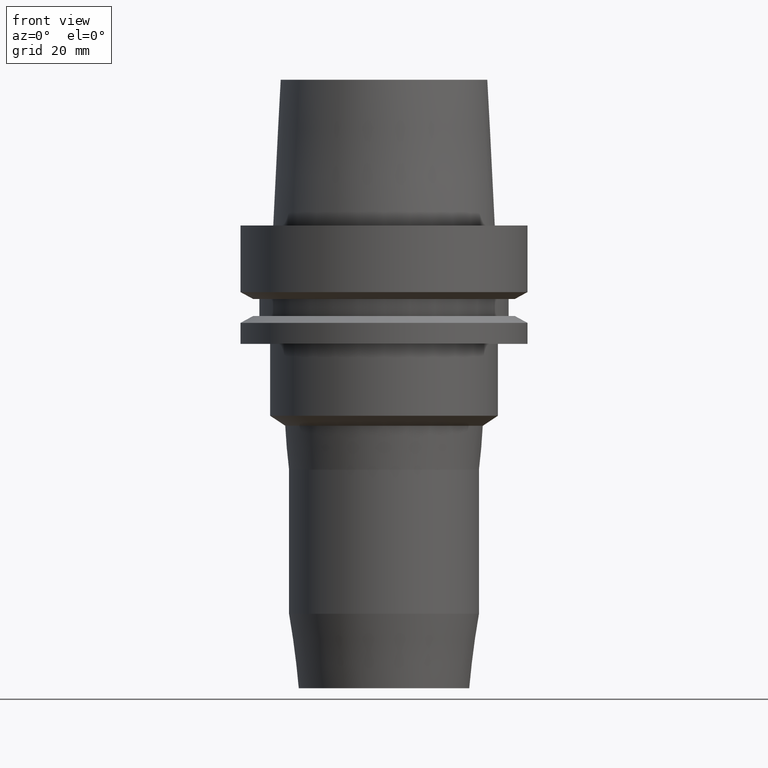
[diagram: clean part render]
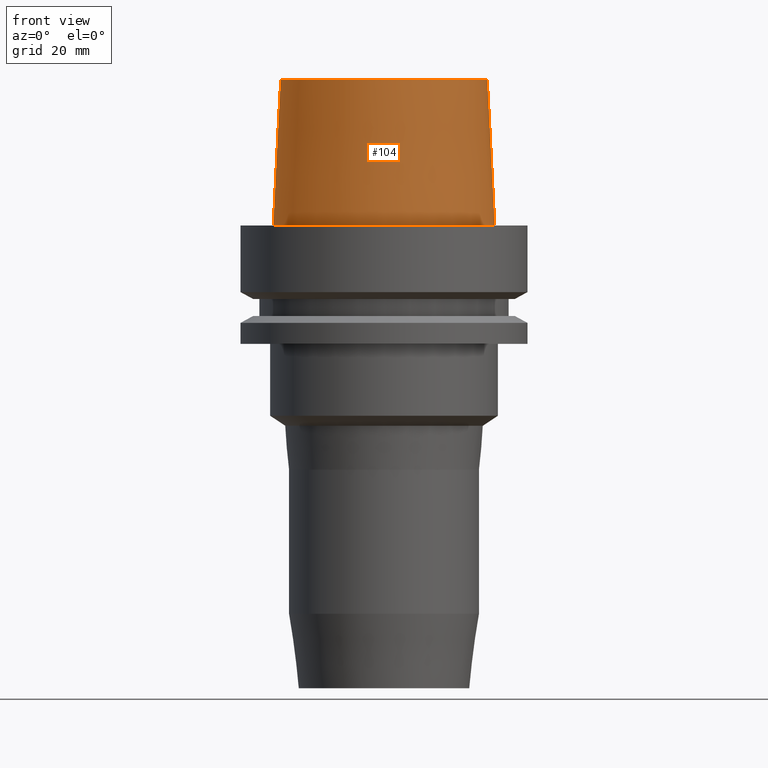
[diagram: same view with one face highlighted and labeled with its STEP entity id]
A machine part, front view. The second image highlights one B-rep face of the part: STEP entity #104.
In plain terms, the highlighted conical surface has half-angle 2.862 deg.
Its self-contained STEP definition (entity closure, byte-faithful):
#90=EDGE_CURVE('Unnamed[1]',#209,#209,#210,.T.);
#104=ADVANCED_FACE('Unnamed[1]',(#229,#230),#231,.T.);
#128=EDGE_CURVE('Unnamed[1]',#268,#268,#269,.T.);
#209=VERTEX_POINT('',#362);
#210=CIRCLE('',#363,24.315);
#229=FACE_BOUND('',#387,.T.);
#230=FACE_BOUND('',#388,.T.);
#231=CONICAL_SURFACE('',#389,23.515,0.0499583957219433);
#268=VERTEX_POINT('',#436);
#269=CIRCLE('',#437,22.715);
#362=CARTESIAN_POINT('',(-2.99705514225764E-031,24.315,2.97772869212679E-015));
#363=AXIS2_PLACEMENT_3D('',#519,#520,#521);
#387=EDGE_LOOP('',(#542));
#388=EDGE_LOOP('',(#543));
#389=AXIS2_PLACEMENT_3D('',#544,#545,#546);
#436=CARTESIAN_POINT('',(-1.95943487863576E-015,22.715,32.0));
#437=AXIS2_PLACEMENT_3D('',#586,#587,#588);
#519=CARTESIAN_POINT('',(0.0,0.0,0.0));
#520=DIRECTION('',(6.12323399573677E-017,1.22464679914735E-016,-1.0));
#521=DIRECTION('',(-1.23259516440783E-032,1.0,1.22464679914735E-016));
#542=ORIENTED_EDGE('',*,*,#90,.F.);
#543=ORIENTED_EDGE('',*,*,#128,.T.);
#544=CARTESIAN_POINT('',(-9.79717439317882E-016,-1.95943487863576E-015,16.0));
#545=DIRECTION('',(6.12323399573677E-017,1.22464679914735E-016,-1.0));
#546=DIRECTION('',(-1.23259516440783E-032,1.0,1.22464679914735E-016));
#586=CARTESIAN_POINT('',(-1.95943487863576E-015,-3.91886975727153E-015,32.0));
#587=DIRECTION('',(6.12323399573676E-017,1.22464679914735E-016,-1.0));
#588=DIRECTION('',(-1.23259516440783E-032,1.0,1.22464679914735E-016));